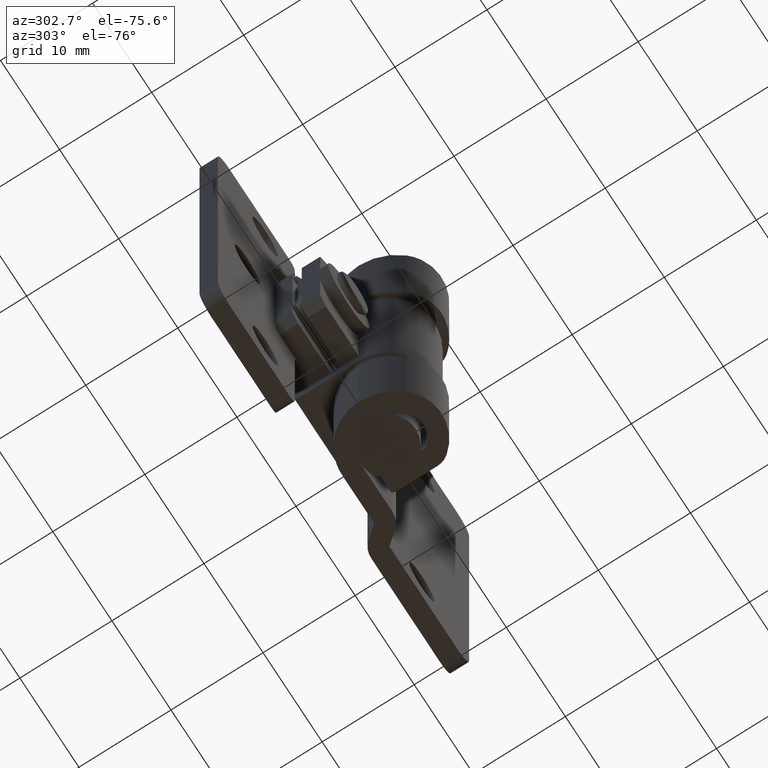
[diagram: clean part render]
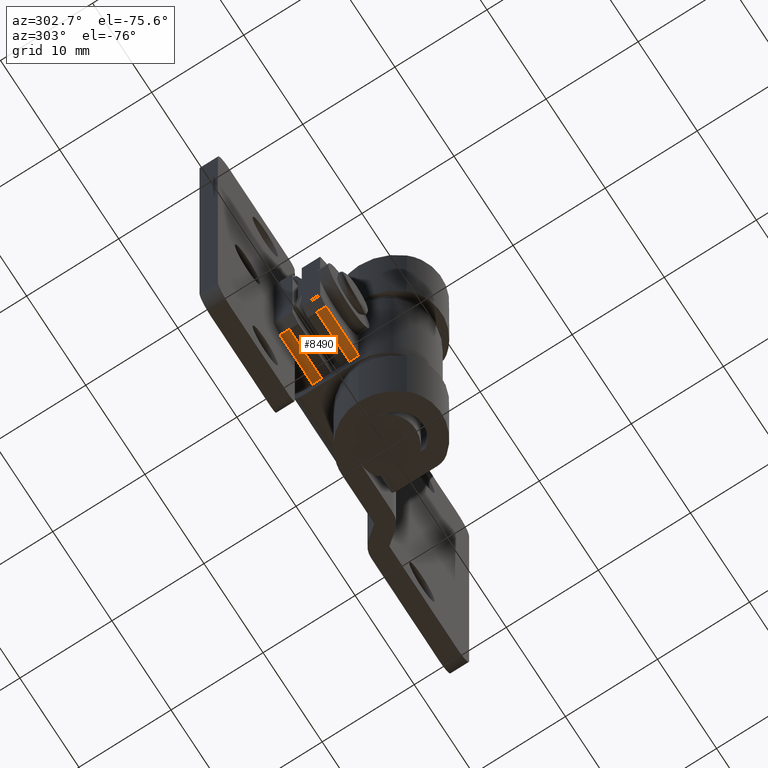
[diagram: same view with one face highlighted and labeled with its STEP entity id]
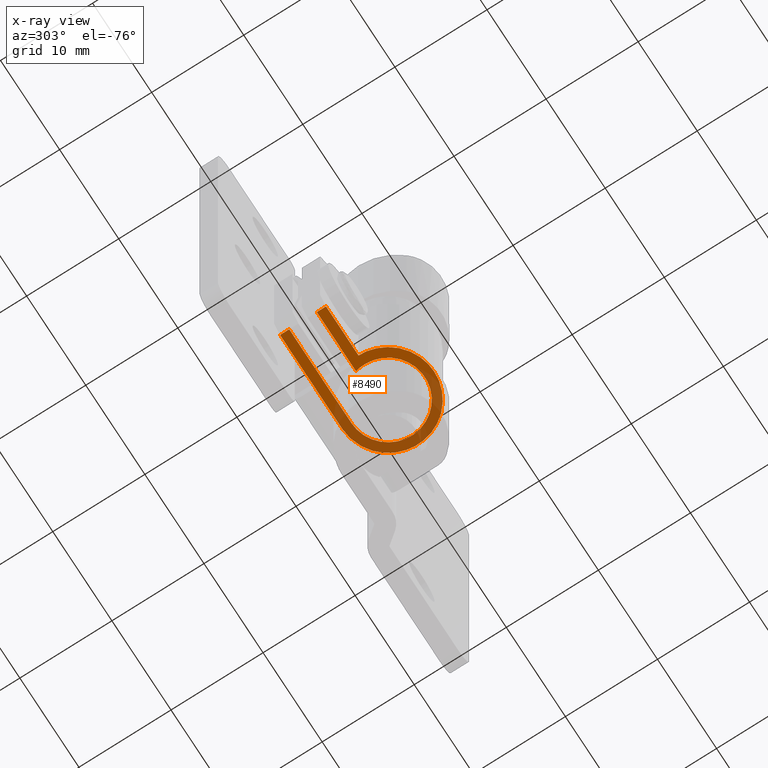
[diagram: x-ray of the same camera — body ghosted, the highlighted face saturated]
A machine part, auxiliary view. The second image highlights one B-rep face of the part: STEP entity #8490.
The next image is the same camera in x-ray: the body ghosted, the highlighted face saturated — about 42% of this face is hidden behind the body in this view.
In plain terms, the highlighted face is a freeform B-spline surface patch.
Its self-contained STEP definition (entity closure, byte-faithful):
#8206=CARTESIAN_POINT('',(-10.499999999999860,4.0,17.0));
#8207=VERTEX_POINT('',#8206);
#8220=CARTESIAN_POINT('',(-10.499999999999860,5.0,17.0));
#8221=VERTEX_POINT('',#8220);
#8227=CARTESIAN_POINT('',(-10.499999999999860,4.0,17.0));
#8228=CARTESIAN_POINT('',(-10.499999999999860,5.0,17.0));
#8229=QUASI_UNIFORM_CURVE('',1,(#8227,#8228),.UNSPECIFIED.,.F.,.U.);
#8230=EDGE_CURVE('',#8207,#8221,#8229,.T.);
#8242=CARTESIAN_POINT('',(-10.499999999999860,0.0,17.0));
#8243=VERTEX_POINT('',#8242);
#8256=CARTESIAN_POINT('',(-10.499999999999860,1.0,17.0));
#8257=VERTEX_POINT('',#8256);
#8263=CARTESIAN_POINT('',(-10.499999999999860,0.0,17.0));
#8264=CARTESIAN_POINT('',(-10.499999999999860,1.0,17.0));
#8265=QUASI_UNIFORM_CURVE('',1,(#8263,#8264),.UNSPECIFIED.,.F.,.U.);
#8266=EDGE_CURVE('',#8243,#8257,#8265,.T.);
#8417=CARTESIAN_POINT('',(-11.274224962912941,-5.499500035256784,17.0));
#8418=CARTESIAN_POINT('',(5.774225236604935,-5.499500035256784,17.0));
#8419=CARTESIAN_POINT('',(-11.274224962912941,5.499500251053421,17.0));
#8420=CARTESIAN_POINT('',(5.774225236604935,5.499500251053421,17.0));
#8421=B_SPLINE_SURFACE_WITH_KNOTS('',1,1,((#8417,#8419),(#8418,#8420)),.UNSPECIFIED.,.F.,.F.,.U.,(2,2),(2,2),(0.0,17.048450199517880),(0.0,10.999000286310210),.UNSPECIFIED.);
#8422=CARTESIAN_POINT('',(-5.0,-6.123032E-016,17.0));
#8423=VERTEX_POINT('',#8422);
#8424=CARTESIAN_POINT('',(-5.0,-6.123032E-016,17.0));
#8425=CARTESIAN_POINT('',(-10.499999999999860,0.0,17.0));
#8426=QUASI_UNIFORM_CURVE('',1,(#8424,#8425),.UNSPECIFIED.,.F.,.U.);
#8427=EDGE_CURVE('',#8423,#8243,#8426,.T.);
#8428=ORIENTED_EDGE('',*,*,#8427,.T.);
#8429=ORIENTED_EDGE('',*,*,#8266,.T.);
#8430=CARTESIAN_POINT('',(-3.872983346207415,1.0,17.0));
#8431=VERTEX_POINT('',#8430);
#8432=CARTESIAN_POINT('',(-10.499999999999860,1.0,17.0));
#8433=CARTESIAN_POINT('',(-3.872983346207415,1.0,17.0));
#8434=QUASI_UNIFORM_CURVE('',1,(#8432,#8433),.UNSPECIFIED.,.F.,.U.);
#8435=EDGE_CURVE('',#8257,#8431,#8434,.T.);
#8436=ORIENTED_EDGE('',*,*,#8435,.T.);
#8437=CARTESIAN_POINT('',(-3.307792E-015,4.0,17.0));
#8438=VERTEX_POINT('',#8437);
#8439=CARTESIAN_POINT('',(0.0,4.0,17.0));
#8440=CARTESIAN_POINT('',(2.859464185336906,4.000000000000000,16.999999999999996));
#8441=CARTESIAN_POINT('',(3.784779428227853,1.294389693895641,17.0));
#8442=CARTESIAN_POINT('',(4.710094671118799,-1.411220612208719,16.999999999999996));
#8443=CARTESIAN_POINT('',(2.449489742783183,-3.162277660168376,17.0));
#8444=CARTESIAN_POINT('',(0.188884814447564,-4.913334708128033,16.999999999999996));
#8445=CARTESIAN_POINT('',(-2.199482289047039,-3.340999500174820,17.0));
#8446=CARTESIAN_POINT('',(-4.587849392541644,-1.768664292221607,16.999999999999996));
#8447=CARTESIAN_POINT('',(-3.872983346207418,0.999999999999996,17.0));
#8455=(BOUNDED_CURVE()B_SPLINE_CURVE(2,(#8439,#8440,#8441,#8442,#8443,#8444,#8445,#8446,#8447),.UNSPECIFIED.,.F.,.U.)B_SPLINE_CURVE_WITH_KNOTS((3,2,2,2,3),(0.0,0.250000000000000,0.500000000000000,0.750000000000000,1.0),.UNSPECIFIED.)CURVE()GEOMETRIC_REPRESENTATION_ITEM()RATIONAL_B_SPLINE_CURVE((1.0,0.813510117784011,1.0,0.813510117784011,1.0,0.813510117784011,1.0,0.813510117784011,1.0))REPRESENTATION_ITEM(''));
#8456=EDGE_CURVE('',#8438,#8431,#8455,.T.);
#8457=ORIENTED_EDGE('',*,*,#8456,.F.);
#8458=CARTESIAN_POINT('',(-3.307792E-015,4.0,17.0));
#8459=CARTESIAN_POINT('',(-10.499999999999860,4.0,17.0));
#8460=QUASI_UNIFORM_CURVE('',1,(#8458,#8459),.UNSPECIFIED.,.F.,.U.);
#8461=EDGE_CURVE('',#8438,#8207,#8460,.T.);
#8462=ORIENTED_EDGE('',*,*,#8461,.T.);
#8463=ORIENTED_EDGE('',*,*,#8230,.T.);
#8464=CARTESIAN_POINT('',(0.0,5.0,17.0));
#8465=VERTEX_POINT('',#8464);
#8466=CARTESIAN_POINT('',(-10.499999999999860,5.0,17.0));
#8467=CARTESIAN_POINT('',(0.0,5.0,17.0));
#8468=QUASI_UNIFORM_CURVE('',1,(#8466,#8467),.UNSPECIFIED.,.F.,.U.);
#8469=EDGE_CURVE('',#8221,#8465,#8468,.T.);
#8470=ORIENTED_EDGE('',*,*,#8469,.T.);
#8471=CARTESIAN_POINT('',(0.0,5.0,17.0));
#8472=CARTESIAN_POINT('',(5.000000000000001,5.000000000000001,17.000000000000004));
#8473=CARTESIAN_POINT('',(5.0,0.0,17.0));
#8474=CARTESIAN_POINT('',(5.000000000000001,-5.000000000000001,17.000000000000004));
#8475=CARTESIAN_POINT('',(0.0,-5.0,17.0));
#8476=CARTESIAN_POINT('',(-5.000000000000001,-5.000000000000001,17.000000000000004));
#8477=CARTESIAN_POINT('',(-5.0,0.0,17.0));
#8485=(BOUNDED_CURVE()B_SPLINE_CURVE(2,(#8471,#8472,#8473,#8474,#8475,#8476,#8477),.UNSPECIFIED.,.F.,.U.)B_SPLINE_CURVE_WITH_KNOTS((3,2,2,3),(0.0,0.333333333333333,0.666666666666667,1.0),.UNSPECIFIED.)CURVE()GEOMETRIC_REPRESENTATION_ITEM()RATIONAL_B_SPLINE_CURVE((1.0,0.707106781186548,1.0,0.707106781186548,1.0,0.707106781186548,1.0))REPRESENTATION_ITEM(''));
#8486=EDGE_CURVE('',#8465,#8423,#8485,.T.);
#8487=ORIENTED_EDGE('',*,*,#8486,.T.);
#8488=EDGE_LOOP('',(#8428,#8429,#8436,#8457,#8462,#8463,#8470,#8487));
#8489=FACE_OUTER_BOUND('',#8488,.T.);
#8490=ADVANCED_FACE('',(#8489),#8421,.F.);